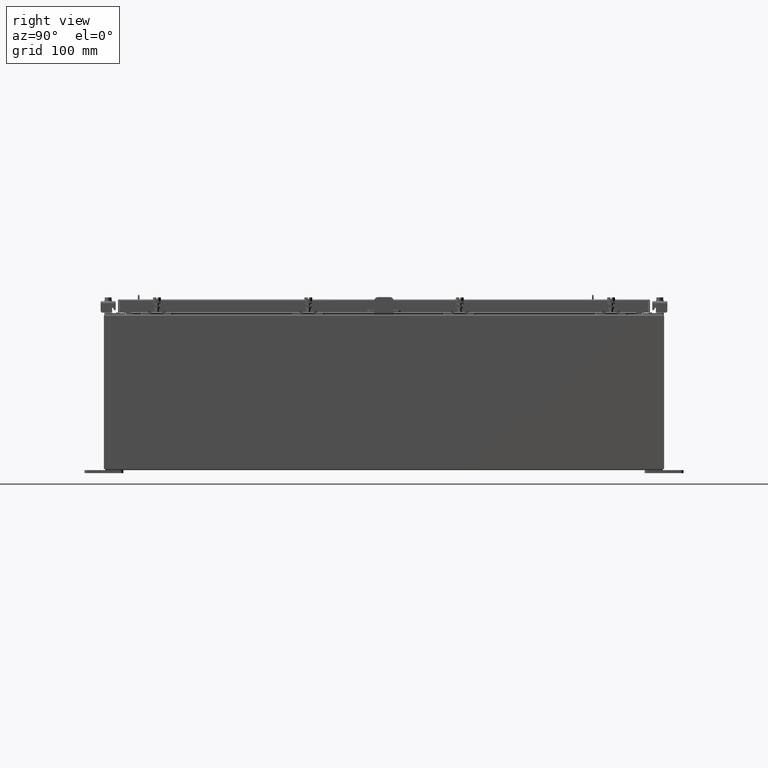
[diagram: clean part render]
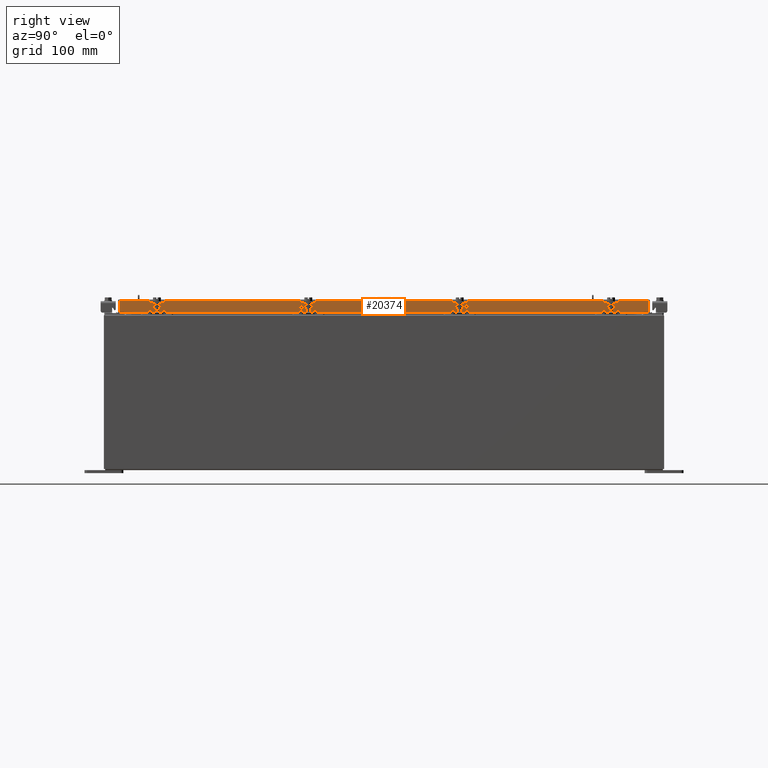
[diagram: same view with one face highlighted and labeled with its STEP entity id]
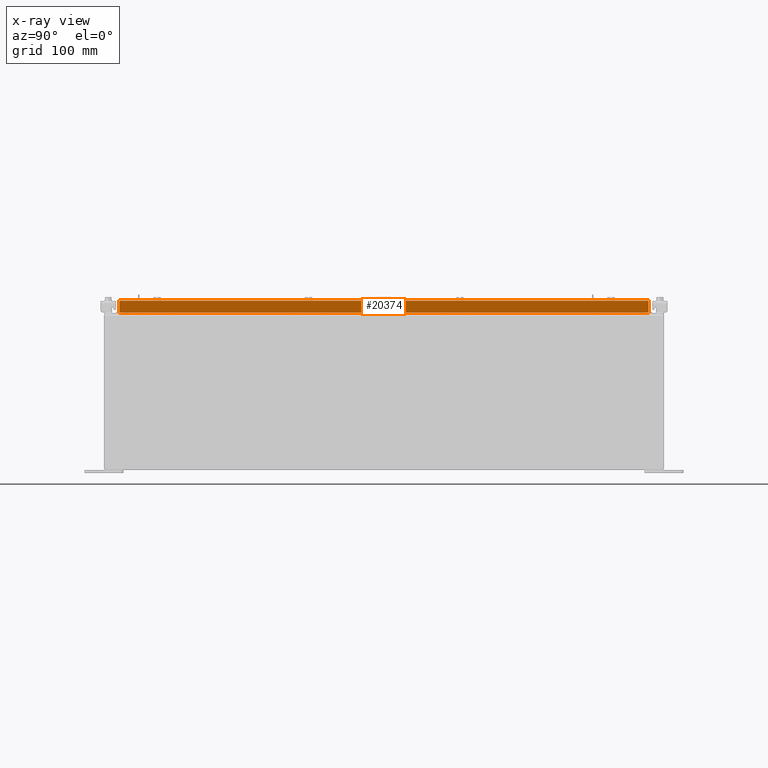
[diagram: x-ray of the same camera — body ghosted, the highlighted face saturated]
A machine part, right view. The second image highlights one B-rep face of the part: STEP entity #20374.
The next image is the same camera in x-ray: the body ghosted, the highlighted face saturated — about 0% of this face is hidden behind the body in this view.
In plain terms, the highlighted planar face has unit normal (1, 0, 0).
Its self-contained STEP definition (entity closure, byte-faithful):
#18 = DIRECTION ( 'NONE',  ( 1.801978295984813200E-031, -1.000000000000000000, -6.392530697705073700E-017 ) ) ;
#1333 = VERTEX_POINT ( 'NONE', #16091 ) ;
#1971 = EDGE_CURVE ( 'NONE', #4938, #7897, #16716, .T. ) ;
#2068 = VECTOR ( 'NONE', #18, 39.37007874015748100 ) ;
#2452 = DIRECTION ( 'NONE',  ( -2.818880942772360500E-015, -6.982962677686269100E-015, 1.000000000000000000 ) ) ;
#3971 = LINE ( 'NONE', #15768, #12970 ) ;
#4253 = CARTESIAN_POINT ( 'NONE',  ( 11.07799999999999800, -17.00515786437626900, -0.07469999999999978000 ) ) ;
#4750 = VECTOR ( 'NONE', #8499, 39.37007874015748100 ) ;
#4938 = VERTEX_POINT ( 'NONE', #5224 ) ;
#4956 = DIRECTION ( 'NONE',  ( 2.818880942772360100E-015, 0.0000000000000000000, -1.000000000000000000 ) ) ;
#5080 = ORIENTED_EDGE ( 'NONE', *, *, #1971, .T. ) ;
#5224 = CARTESIAN_POINT ( 'NONE',  ( 11.07799999999999900, 17.00515786437627600, -0.8499999999999996400 ) ) ;
#5294 = VERTEX_POINT ( 'NONE', #9523 ) ;
#5548 = FACE_OUTER_BOUND ( 'NONE', #9793, .T. ) ;
#5811 = CARTESIAN_POINT ( 'NONE',  ( 11.07799999999999800, 17.00515786437626900, 1.502347594351463900E-013 ) ) ;
#5911 = EDGE_CURVE ( 'NONE', #7897, #1333, #6838, .T. ) ;
#6377 = VERTEX_POINT ( 'NONE', #16156 ) ;
#6687 = CARTESIAN_POINT ( 'NONE',  ( 11.07799999999999200, 16.25515786437627200, -0.8500000000000020900 ) ) ;
#6838 = LINE ( 'NONE', #15136, #2068 ) ;
#7107 = EDGE_CURVE ( 'NONE', #6377, #5294, #3971, .T. ) ;
#7120 = CARTESIAN_POINT ( 'NONE',  ( 11.07799999999999900, -17.09400000000000100, -0.8499999999999996400 ) ) ;
#7127 = VECTOR ( 'NONE', #23356, 39.37007874015748100 ) ;
#7748 = ORIENTED_EDGE ( 'NONE', *, *, #20118, .F. ) ;
#7897 = VERTEX_POINT ( 'NONE', #19626 ) ;
#8086 = VECTOR ( 'NONE', #12555, 39.37007874015748100 ) ;
#8499 = DIRECTION ( 'NONE',  ( 0.0000000000000000000, -1.000000000000000000, 0.0000000000000000000 ) ) ;
#8920 = VERTEX_POINT ( 'NONE', #14112 ) ;
#8951 = VECTOR ( 'NONE', #2452, 39.37007874015748100 ) ;
#9417 = EDGE_CURVE ( 'NONE', #8920, #6377, #18544, .T. ) ;
#9522 = LINE ( 'NONE', #4253, #8951 ) ;
#9523 = CARTESIAN_POINT ( 'NONE',  ( 11.07799999999999900, -17.00515786437626500, -0.8499999999999996400 ) ) ;
#9793 = EDGE_LOOP ( 'NONE', ( #7748, #12589, #10140, #13558, #5080, #17583 ) ) ;
#10140 = ORIENTED_EDGE ( 'NONE', *, *, #9417, .F. ) ;
#10988 = DIRECTION ( 'NONE',  ( 0.0000000000000000000, -1.000000000000000000, 0.0000000000000000000 ) ) ;
#12555 = DIRECTION ( 'NONE',  ( 0.0000000000000000000, -1.000000000000000000, 0.0000000000000000000 ) ) ;
#12589 = ORIENTED_EDGE ( 'NONE', *, *, #7107, .F. ) ;
#12970 = VECTOR ( 'NONE', #10988, 39.37007874015748100 ) ;
#13558 = ORIENTED_EDGE ( 'NONE', *, *, #21958, .F. ) ;
#13935 = CARTESIAN_POINT ( 'NONE',  ( 11.07799999999999800, 0.0000000000000000000, 3.148837674004378400E-014 ) ) ;
#14112 = CARTESIAN_POINT ( 'NONE',  ( 11.07799999999999200, 16.25515786437627200, -0.8500000000000020900 ) ) ;
#15136 = CARTESIAN_POINT ( 'NONE',  ( 11.07799999999999800, 5.606249421889436000E-018, -0.08770000000000115200 ) ) ;
#15753 = DIRECTION ( 'NONE',  ( 1.000000000000000000, 0.0000000000000000000, 2.818880942772360100E-015 ) ) ;
#15768 = CARTESIAN_POINT ( 'NONE',  ( 11.07799999999999900, -17.09400000000000100, -0.8499999999999996400 ) ) ;
#16091 = CARTESIAN_POINT ( 'NONE',  ( 11.07799999999999800, -17.00515786437626900, -0.08770000000000224800 ) ) ;
#16156 = CARTESIAN_POINT ( 'NONE',  ( 11.07799999999999200, -16.25515786437626500, -0.8500000000000020900 ) ) ;
#16716 = LINE ( 'NONE', #5811, #7127 ) ;
#17147 = AXIS2_PLACEMENT_3D ( 'NONE', #13935, #15753, #4956 ) ;
#17489 = PLANE ( 'NONE',  #17147 ) ;
#17583 = ORIENTED_EDGE ( 'NONE', *, *, #5911, .T. ) ;
#17680 = LINE ( 'NONE', #7120, #8086 ) ;
#18544 = LINE ( 'NONE', #6687, #4750 ) ;
#19626 = CARTESIAN_POINT ( 'NONE',  ( 11.07799999999999800, 17.00515786437626500, -0.08770000000000115200 ) ) ;
#20118 = EDGE_CURVE ( 'NONE', #5294, #1333, #9522, .T. ) ;
#20374 = ADVANCED_FACE ( 'NONE', ( #5548 ), #17489, .T. ) ;
#21958 = EDGE_CURVE ( 'NONE', #4938, #8920, #17680, .T. ) ;
#23356 = DIRECTION ( 'NONE',  ( -2.818880942772360500E-015, -6.982962677686269100E-015, 1.000000000000000000 ) ) ;